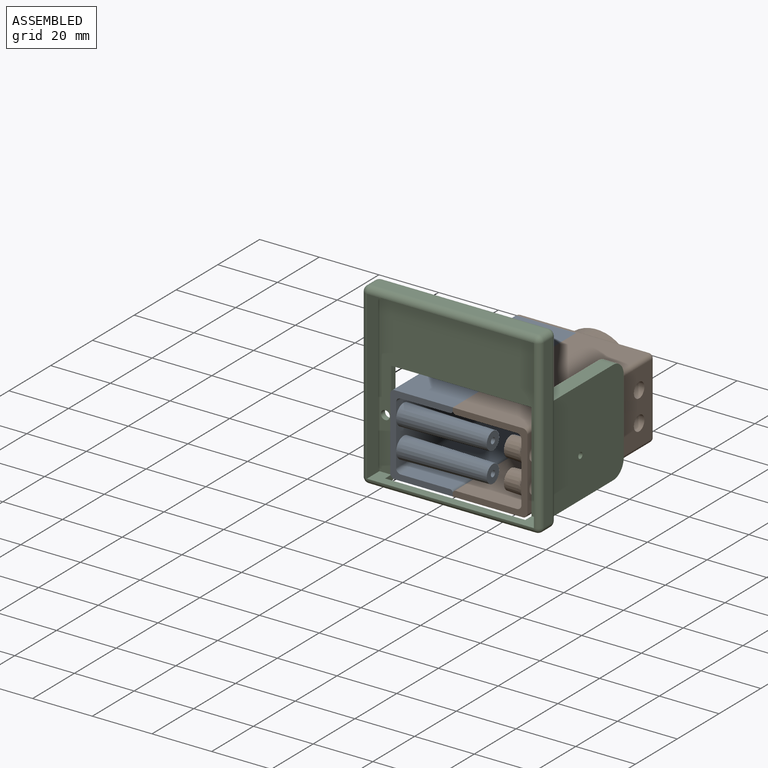
[diagram: assembled view]
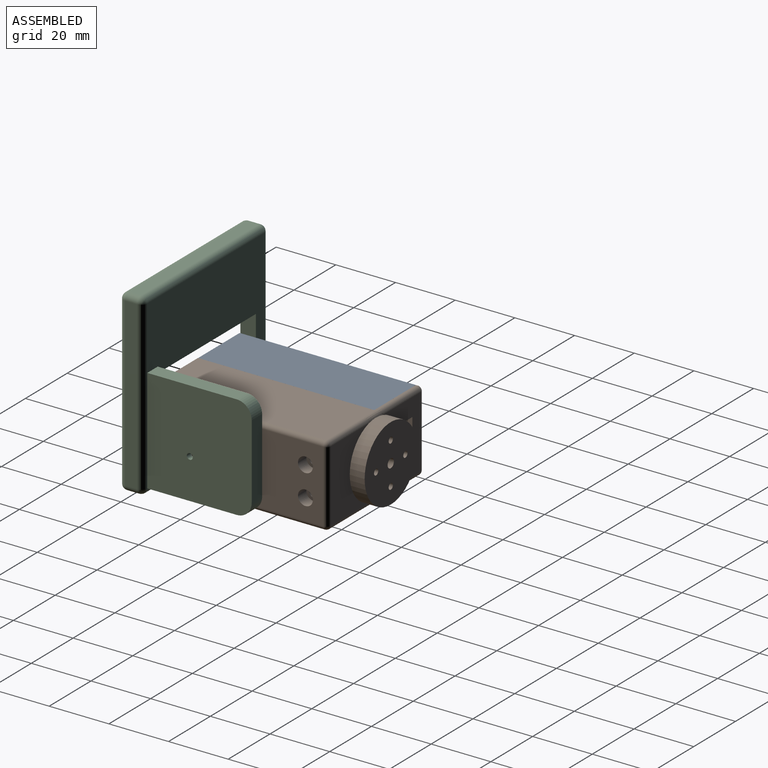
[diagram: assembled view, second angle]
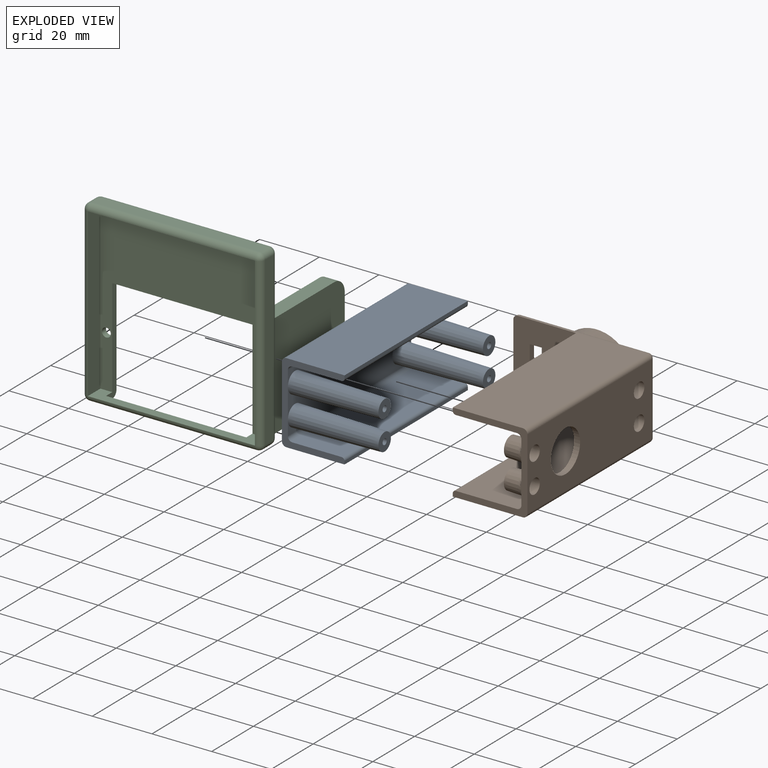
[diagram: exploded view]
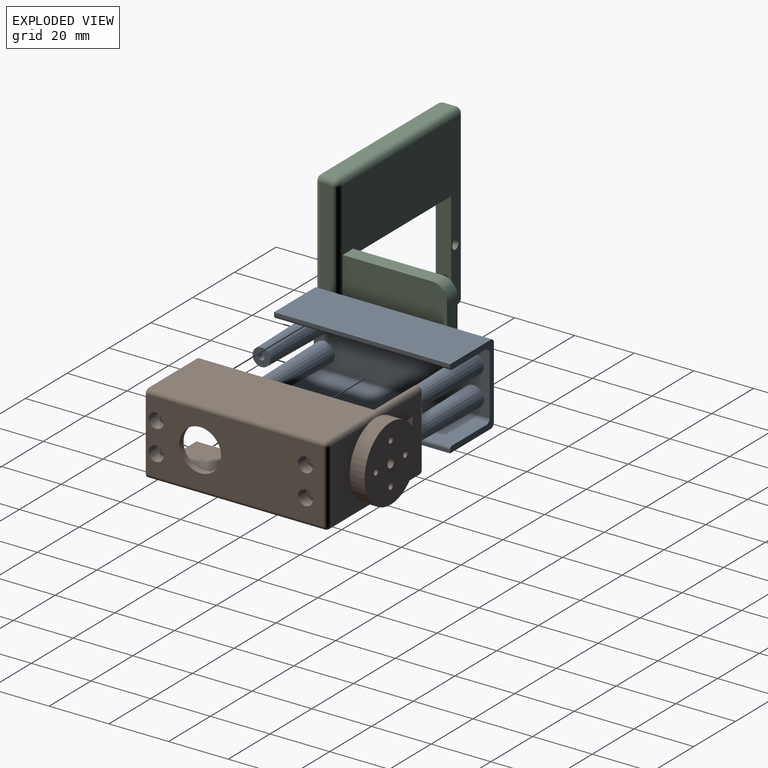
[diagram: exploded view, second angle]
ASSEMBLY  parts=3 mates=2
PART A: 32 faces, bbox 32x59x27 mm
  f0: cylinder r=1.5mm len=59mm, axis (0,-1,0), area 139mm2, adj f1,f13,f14,f15
  f1: plane 59x19.5mm, normal (0,0,1), area 1150.5mm2, adj f0,f2,f14,f15
  f2: plane 59x1mm, normal (1,0,0), area 59mm2, adj f1,f3,f14,f15
  f3: cylinder r=1mm len=59mm, axis (0,-1,0), area 92.7mm2, adj f2,f4,f14,f15
  f4: plane 59x16.5mm, normal (0,0,-1), area 973.5mm2, adj f3,f5,f14,f15
  f5: cylinder r=1.5mm len=59mm, axis (0,-1,0), area 139mm2, adj f4,f6,f14,f15
  f6: plane 59x20mm, normal (1,0,0), area 1026.1mm2, adj f5,f7,f14,f15,f16,f18,f20,f22
  f7: cylinder r=1.5mm len=59mm, axis (0,-1,0), area 139mm2, adj f6,f8,f14,f15
  f8: plane 59x16.5mm, normal (0,0,1), area 973.5mm2, adj f7,f9,f14,f15
  f9: cylinder r=1mm len=59mm, axis (0,-1,0), area 92.7mm2, adj f8,f10,f14,f15
  f10: plane 59x1mm, normal (1,0,0), area 59mm2, adj f9,f11,f14,f15
  f11: plane 59x19.5mm, normal (0,0,-1), area 1150.5mm2, adj f10,f12,f14,f15
  f12: cylinder r=1.5mm len=59mm, axis (0,-1,0), area 139mm2, adj f11,f13,f14,f15
  f13: plane 59x24mm, normal (-1,0,0), area 1416mm2, adj f0,f12,f14,f15
  f14: plane 27x21mm, normal (0,1,0), area 129.6mm2, adj f0,f1,f2,f3,f4,f5,f6,f7
  f15: plane 27x21mm, normal (0,-1,0), area 129.6mm2, adj f0,f1,f2,f3,f4,f5,f6,f7
  f16: cone r=3.5mm half-angle=1deg, axis (-1,0,0), area 610.5mm2, adj f6,f17
  f17: plane 5.95x5.95mm, normal (1,0,0), area 24.7mm2, adj f16,f30
  f18: cone r=3.5mm half-angle=1deg, axis (-1,0,0), area 610.5mm2, adj f6,f19
  f19: plane 5.95x5.95mm, normal (1,0,0), area 24.7mm2, adj f18,f28
  f20: cone r=3.5mm half-angle=1deg, axis (-1,0,0), area 610.5mm2, adj f6,f21
  f21: plane 5.95x5.95mm, normal (1,0,0), area 24.7mm2, adj f20,f26
  f22: cone r=3.5mm half-angle=1deg, axis (-1,0,0), area 610.5mm2, adj f6,f23
  f23: plane 5.95x5.95mm, normal (1,0,0), area 24.7mm2, adj f22,f24
  f24: cylinder r=1mm len=11mm, axis (1,0,0), area 69.1mm2, adj f23,f25
  f25: plane 2x2mm, normal (1,0,0), area 3.1mm2, adj f24
  f26: cylinder r=1mm len=11mm, axis (1,0,0), area 69.1mm2, adj f21,f27
  f27: plane 2x2mm, normal (1,0,0), area 3.1mm2, adj f26
  f28: cylinder r=1mm len=11mm, axis (1,0,0), area 69.1mm2, adj f19,f29
  f29: plane 2x2mm, normal (1,0,0), area 3.1mm2, adj f28
  f30: cylinder r=1mm len=11mm, axis (1,0,0), area 69.1mm2, adj f17,f31
  f31: plane 2x2mm, normal (1,0,0), area 3.1mm2, adj f30
PART B: 87 faces, bbox 27.6x67.5x47.6 mm
  f0: plane 24x18mm, normal (0,1,0), area 272.9mm2, adj f15,f17,f60,f66
  f1: plane 20x14.92mm, normal (0,-1,0), area 206.1mm2, adj f3,f51,f54,f57
  f2: plane 59x1.29mm, normal (0,0,-1), area 59.1mm2, adj f7,f10,f29,f73,f74
  f3: cylinder r=11mm len=22mm, axis (0,-1,0), area 276.5mm2, adj f1,f10,f53,f56,f86
  f4: plane 59x1.29mm, normal (0,0,-1), area 59.1mm2, adj f8,f10,f29,f71,f72
  f5: plane 59.5x24mm, normal (0,0,1), area 1195.5mm2, adj f17,f18,f19,f29,f38,f40,f42,f44
  f6: plane 24x18mm, normal (0,1,0), area 224.9mm2, adj f15,f16,f25,f26,f27,f28,f62,f68
  f7: plane 59.59x43mm, normal (1,0,0), area 1408.3mm2, adj f2,f10,f18,f29,f60,f61,f62,f64
  f8: plane 59.59x43mm, normal (-1,0,0), area 1408.3mm2, adj f4,f10,f19,f29,f66,f67,f68,f70
  f9: plane 57.5x20mm, normal (0,0,-1), area 755.3mm2, adj f29,f50,f51,f52,f75,f77,f80,f83
  f10: plane 27.17x22.23mm, normal (0,-1,0), area 372.4mm2, adj f2,f3,f4,f7,f8,f13,f25,f26
  f11: plane 57.88x20.51mm, normal (-1,0,0), area 1180mm2, adj f29,f52,f53,f54,f73
  f12: plane 57.88x20.51mm, normal (1,0,0), area 1180mm2, adj f29,f50,f56,f57,f71
  f13: plane 24x0.5mm, normal (0,0,-1), area 12mm2, adj f10,f16,f64,f70
  f14: plane 25x25mm, normal (0,1,0), area 471.2mm2, adj f15,f20,f21,f22,f23,f24
  f15: cylinder r=12.5mm len=25mm, axis (0,-1,0), area 392.7mm2, adj f0,f6,f14,f61,f67
  f16: cylinder r=1.5mm len=24mm, axis (-1,0,0), area 56.5mm2, adj f6,f13,f63,f69
  f17: cylinder r=1.5mm len=24mm, axis (-1,0,0), area 56.5mm2, adj f0,f5,f59,f65
  f18: cylinder r=1.5mm len=59.5mm, axis (0,-1,0), area 140.2mm2, adj f5,f7,f29,f59
  f19: cylinder r=1.5mm len=59.5mm, axis (0,1,0), area 140.2mm2, adj f5,f8,f29,f65
  f20: cylinder r=1.5mm len=3mm, axis (0,1,0), area 28.3mm2, adj f14,f86
  f21: cylinder r=1mm len=3mm, axis (0,1,0), area 18.8mm2, adj f14,f86
  f22: cylinder r=1mm len=3mm, axis (0,1,0), area 18.8mm2, adj f14,f86
  f23: cylinder r=1mm len=3mm, axis (0,1,0), area 18.8mm2, adj f14,f86
  f24: cylinder r=1mm len=3mm, axis (0,1,0), area 18.8mm2, adj f14,f86
  f25: plane 4x2mm, normal (1,0,0), area 8mm2, adj f6,f10,f26,f28
  f26: plane 12x2mm, normal (0,0,1), area 24mm2, adj f6,f10,f25,f27
  f27: plane 4x2mm, normal (-1,0,0), area 8mm2, adj f6,f10,f26,f28
  f28: plane 12x2mm, normal (0,0,-1), area 24mm2, adj f6,f10,f25,f27
  f29: plane 27.57x25.57mm, normal (0,-1,0), area 145.6mm2, adj f2,f4,f5,f7,f8,f9,f11,f12
  f30: cone r=3.5mm half-angle=2deg, axis (0,0,1), area 106.9mm2, adj f31,f75,f76
  f31: plane 6.58x6.58mm, normal (0,0,-1), area 26.9mm2, adj f30,f49
  f32: cone r=3.5mm half-angle=2deg, axis (0,0,1), area 106.9mm2, adj f33,f77,f78
  f33: plane 6.58x6.58mm, normal (0,0,-1), area 26.9mm2, adj f32,f48
  f34: cone r=3.5mm half-angle=2deg, axis (0,0,1), area 109.2mm2, adj f35,f82,f83,f84
  f35: plane 6.58x6.58mm, normal (0,0,-1), area 26.9mm2, adj f34,f47
  f36: cone r=3.5mm half-angle=2deg, axis (0,0,1), area 109.2mm2, adj f37,f79,f80,f81
  f37: plane 6.58x6.58mm, normal (0,0,-1), area 26.9mm2, adj f36,f46
  f38: cylinder r=2.5mm len=5mm, axis (0,0,1), area 62.8mm2, adj f5,f39
  f39: plane 5x5mm, normal (0,0,1), area 12.6mm2, adj f38,f48
  f40: cylinder r=2.5mm len=5mm, axis (0,0,1), area 62.8mm2, adj f5,f41
  f41: plane 5x5mm, normal (0,0,1), area 12.6mm2, adj f40,f49
  f42: cylinder r=2.5mm len=5mm, axis (0,0,1), area 62.8mm2, adj f5,f43
  f43: plane 5x5mm, normal (0,0,1), area 12.6mm2, adj f42,f46
  f44: cylinder r=2.5mm len=5mm, axis (0,0,1), area 62.8mm2, adj f5,f45
  f45: plane 5x5mm, normal (0,0,1), area 12.6mm2, adj f44,f47
  f46: cylinder r=1.5mm len=4mm, axis (0,0,1), area 37.7mm2, adj f37,f43
  f47: cylinder r=1.5mm len=4mm, axis (0,0,1), area 37.7mm2, adj f35,f45
  f48: cylinder r=1.5mm len=4mm, axis (0,0,1), area 37.7mm2, adj f33,f39
  f49: cylinder r=1.5mm len=4mm, axis (0,0,1), area 37.7mm2, adj f31,f41
  f50: cylinder r=1.5mm len=57.5mm, axis (0,-1,0), area 135.5mm2, adj f9,f12,f29,f58
  f51: cylinder r=1.5mm len=20mm, axis (1,0,0), area 38.6mm2, adj f1,f9,f55,f58,f76,f78
  f52: cylinder r=1.5mm len=57.5mm, axis (0,1,0), area 135.5mm2, adj f9,f11,f29,f55
  f53: bspline ~7.32x1.77mm, area 8.8mm2, adj f3,f11,f54,f74
  f54: cylinder r=1.5mm len=14.92mm, axis (0,0,-1), area 35.1mm2, adj f1,f11,f53,f55
  f55: sphere r=1.5mm, area 2.3mm2, adj f51,f52,f54
  f56: bspline ~7.32x1.77mm, area 8.8mm2, adj f3,f12,f57,f72
  f57: cylinder r=1.5mm len=14.92mm, axis (0,0,1), area 35.1mm2, adj f1,f12,f56,f58
  f58: sphere r=1.5mm, area 4.8mm2, adj f50,f51,f57
  f59: sphere r=1.5mm, area 2.3mm2, adj f17,f18,f60
  f60: cylinder r=1.5mm len=18mm, axis (0,0,1), area 42.4mm2, adj f0,f7,f59,f61
  f61: bspline ~8.18x1.7mm, area 14.1mm2, adj f7,f15,f60,f62
  f62: cylinder r=1.5mm len=18mm, axis (0,0,1), area 42.4mm2, adj f6,f7,f61,f63
  f63: sphere r=1.5mm, area 4.8mm2, adj f16,f62,f64
  f64: cylinder r=1.5mm len=1.5mm, axis (0,1,0), area 1.2mm2, adj f7,f10,f13,f63
  f65: sphere r=1.5mm, area 4.8mm2, adj f17,f19,f66
  f66: cylinder r=1.5mm len=18mm, axis (0,0,-1), area 42.4mm2, adj f0,f8,f65,f67
  f67: bspline ~8.18x1.7mm, area 14.1mm2, adj f8,f15,f66,f68
  f68: cylinder r=1.5mm len=18mm, axis (0,0,-1), area 42.4mm2, adj f6,f8,f67,f69
  f69: sphere r=1.5mm, area 4.8mm2, adj f16,f68,f70
  f70: cylinder r=1.5mm len=1.5mm, axis (0,1,0), area 1.2mm2, adj f8,f10,f13,f69
  f71: cylinder r=1mm len=57.84mm, axis (0,1,0), area 90.9mm2, adj f4,f12,f29,f72
  f72: bspline ~2.69x1.74mm, area 2mm2, adj f4,f10,f56,f71
  f73: cylinder r=1mm len=57.84mm, axis (0,-1,0), area 90.9mm2, adj f2,f11,f29,f74
  f74: bspline ~2.27x1.74mm, area 2mm2, adj f2,f10,f53,f73
  f75: torus R=4.47mm, axis (0,0,-1), area 31.6mm2, adj f9,f30,f76
  f76: bspline ~4.31x4.28mm, area 8.4mm2, adj f30,f51,f75
  f77: torus R=4.47mm, axis (0,0,-1), area 31.6mm2, adj f9,f32,f78
  f78: bspline ~4.31x4.28mm, area 8.4mm2, adj f32,f51,f77
  f79: bspline ~2.99x1.11mm, area 1.2mm2, adj f29,f36,f80
  f80: torus R=4.47mm, axis (0,0,-1), area 29.1mm2, adj f9,f36,f79,f81
  f81: bspline ~2.99x1.11mm, area 1.2mm2, adj f29,f36,f80
  f82: bspline ~2.99x1.11mm, area 1.2mm2, adj f29,f34,f83
  f83: torus R=4.47mm, axis (0,0,-1), area 29.1mm2, adj f9,f34,f82,f84
  f84: bspline ~2.99x1.11mm, area 1.2mm2, adj f29,f34,f83
  f85: cylinder r=7mm len=14mm, axis (0,0,-1), area 88mm2, adj f5,f9
  f86: plane 22x22mm, normal (0,-1,0), area 360.5mm2, adj f3,f20,f21,f22,f23,f24
PART C: 45 faces, bbox 60x43x60 mm
  f0: plane 56x56mm, normal (0,1,0), area 1402.9mm2, adj f9,f10,f19,f20,f31,f32,f33,f35
  f1: cylinder r=2mm len=5mm, axis (0,0,1), area 15.7mm2, adj f3,f7,f32,f37
  f2: plane 56x4mm, normal (0,0,1), area 224mm2, adj f6,f10,f11,f12
  f3: plane 56x4mm, normal (1,0,0), area 83mm2, adj f1,f6,f9,f13,f14,f32,f33,f34
  f4: plane 56x4mm, normal (0,0,-1), area 224mm2, adj f14,f19,f22,f25
  f5: plane 56x4mm, normal (-1,0,0), area 224mm2, adj f11,f20,f21,f25
  f6: cylinder r=2mm len=4mm, axis (0,-1,0), area 12.6mm2, adj f2,f3,f7,f8
  f7: sphere r=2mm, area 6.3mm2, adj f1,f6,f10
  f8: sphere r=2mm, area 6.3mm2, adj f6,f12,f13
  f9: cylinder r=2mm len=4mm, axis (0,0,1), area 12.6mm2, adj f0,f3,f15,f33
  f10: cylinder r=2mm len=56mm, axis (-1,0,0), area 175.9mm2, adj f0,f2,f7,f16,f36
  f11: cylinder r=2mm len=4mm, axis (0,1,0), area 12.6mm2, adj f2,f5,f16,f17
  f12: cylinder r=2mm len=56mm, axis (1,0,0), area 175.9mm2, adj f2,f8,f17,f26
  f13: cylinder r=2mm len=56mm, axis (0,0,-1), area 175.9mm2, adj f3,f8,f18,f27
  f14: cylinder r=2mm len=4mm, axis (0,1,0), area 12.6mm2, adj f3,f4,f15,f18
  f15: sphere r=2mm, area 6.3mm2, adj f9,f14,f19
  f16: sphere r=2mm, area 6.3mm2, adj f10,f11,f20
  f17: sphere r=2mm, area 6.3mm2, adj f11,f12,f21
  f18: sphere r=2mm, area 6.3mm2, adj f13,f14,f22
  f19: cylinder r=2mm len=56mm, axis (1,0,0), area 175.9mm2, adj f0,f4,f15,f23
  f20: cylinder r=2mm len=56mm, axis (0,0,-1), area 175.9mm2, adj f0,f5,f16,f23
  f21: cylinder r=2mm len=56mm, axis (0,0,1), area 175.9mm2, adj f5,f17,f24,f29
  f22: cylinder r=2mm len=56mm, axis (-1,0,0), area 175.9mm2, adj f4,f18,f24,f28
  f23: sphere r=2mm, area 6.3mm2, adj f19,f20,f25
  f24: sphere r=2mm, area 6.3mm2, adj f21,f22,f25
  f25: cylinder r=2mm len=4mm, axis (0,-1,0), area 12.6mm2, adj f4,f5,f23,f24
  f26: plane 56x6mm, normal (0,0,-1), area 336mm2, adj f12,f27,f29,f30
  f27: plane 56x6mm, normal (-1,0,0), area 195mm2, adj f13,f26,f28,f30,f32,f33,f34
  f28: plane 56x6mm, normal (0,0,1), area 336mm2, adj f22,f27,f29,f30
  f29: plane 56x6mm, normal (1,0,0), area 336mm2, adj f21,f26,f28,f30
  f30: plane 56x56mm, normal (0,-1,0), area 1577.9mm2, adj f26,f27,f28,f29,f31,f32,f33,f44
  f31: plane 47x2mm, normal (1,0,0), area 94mm2, adj f0,f30,f32,f33
  f32: plane 40x37mm, normal (0,0,-1), area 943.1mm2, adj f0,f1,f3,f27,f30,f31,f34,f35
  f33: plane 35x5mm, normal (0,0,1), area 75.1mm2, adj f0,f3,f9,f27,f30,f31,f34
  f34: plane 47x2mm, normal (0,1,0), area 94mm2, adj f3,f27,f32,f33
  f35: plane 30x5mm, normal (-1,0,0), area 150mm2, adj f0,f32,f36,f40
  f36: plane 35x35mm, normal (0,0,1), area 1211.1mm2, adj f10,f35,f37,f38,f39,f40,f43
  f37: plane 30x5mm, normal (1,0,0), area 150mm2, adj f1,f32,f36,f39
  f38: plane 25x5mm, normal (0,1,0), area 125mm2, adj f32,f36,f39,f40
  f39: cylinder r=5mm len=5mm, axis (0,0,1), area 39.3mm2, adj f32,f36,f37,f38
  f40: cylinder r=5mm len=5mm, axis (0,0,-1), area 39.3mm2, adj f32,f35,f36,f38
  f41: cylinder r=10.5mm len=21mm, axis (0,0,-1), area 197.9mm2, adj f32,f42
  f42: plane 21x21mm, normal (0,0,-1), area 343.2mm2, adj f41,f43
  f43: cylinder r=1mm len=2mm, axis (0,0,-1), area 12.6mm2, adj f36,f42
  f44: cylinder r=1.5mm len=3mm, axis (0,1,0), area 18.8mm2, adj f0,f30
PLACE A t=(-72.7,-14.97,-2.99)mm
PLACE B rot(axis=(0,1,0),90deg) t=(-27.7,-17.02,-0.99)mm
PLACE C rot(axis=(0,1,0),90deg) t=(-20.7,-19.02,30.01)mm
MATE planar B.f2 <-> A.f10  axis (-1,0,0) through (-52.7,14.53,-27.49)mm
MATE revolute B.f85 <-> C.f41  axis (1,0,0) through (-27.7,3.23,-14.49)mm
